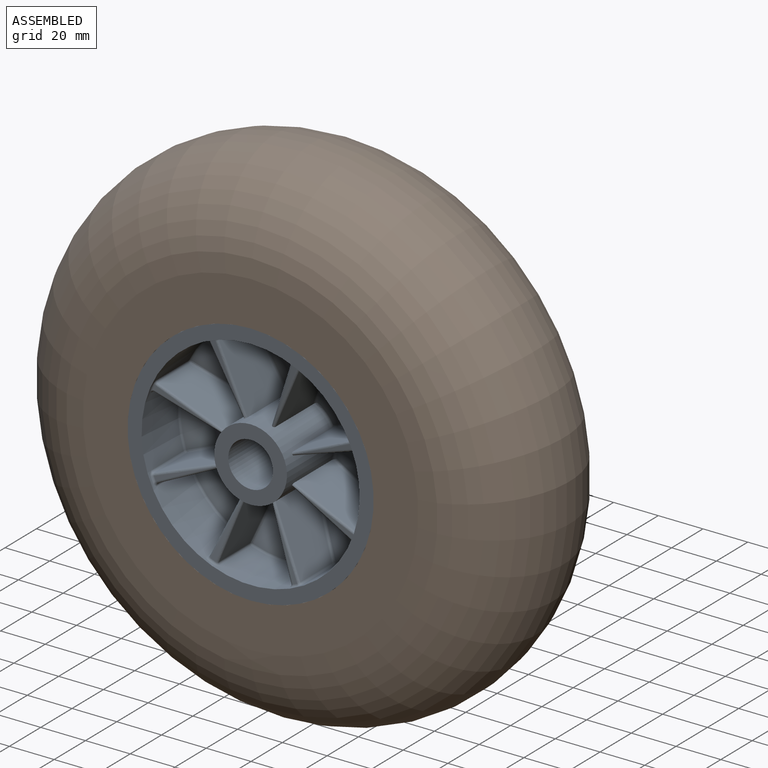
[diagram: assembled view]
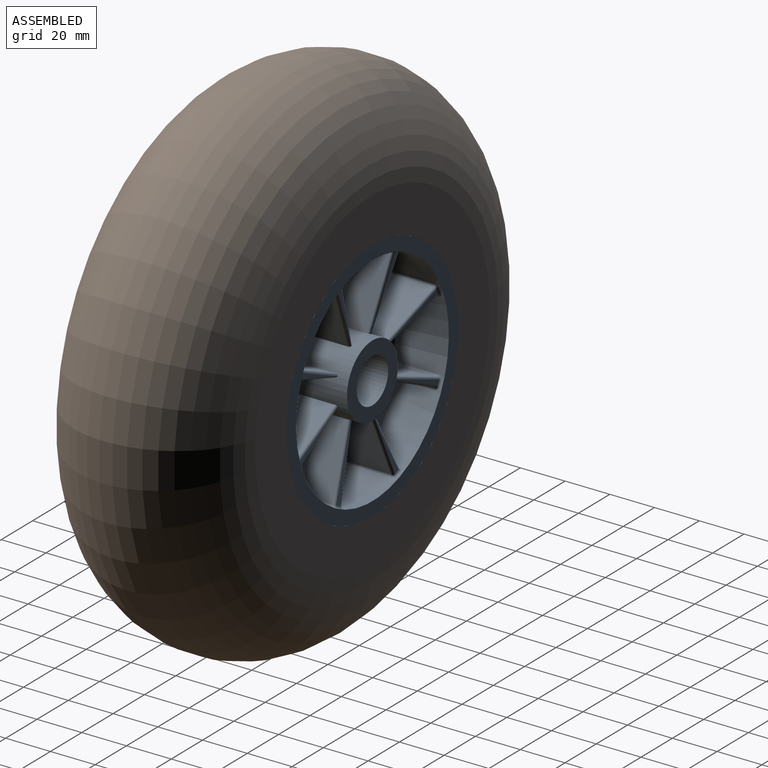
[diagram: assembled view, second angle]
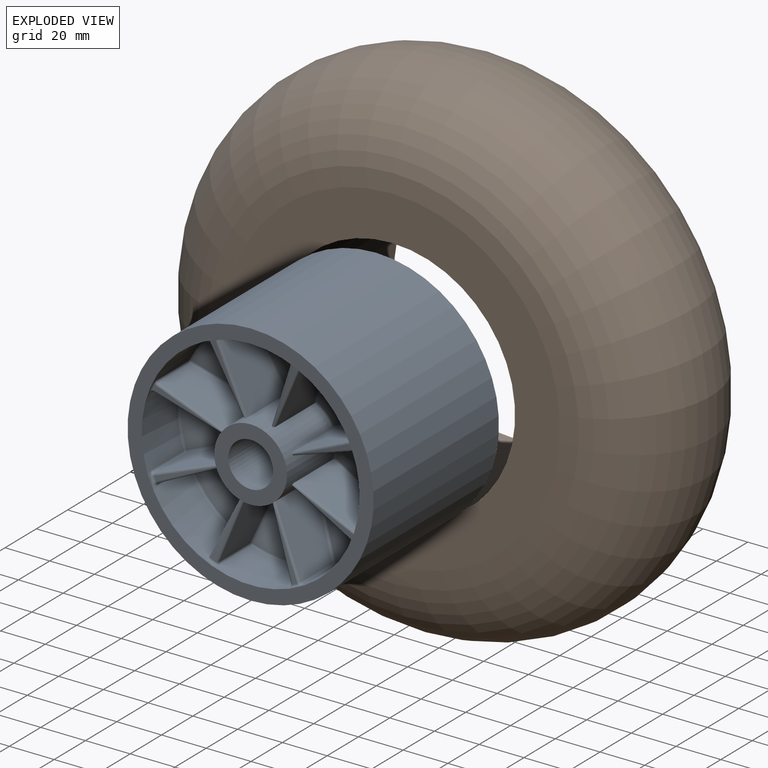
[diagram: exploded view]
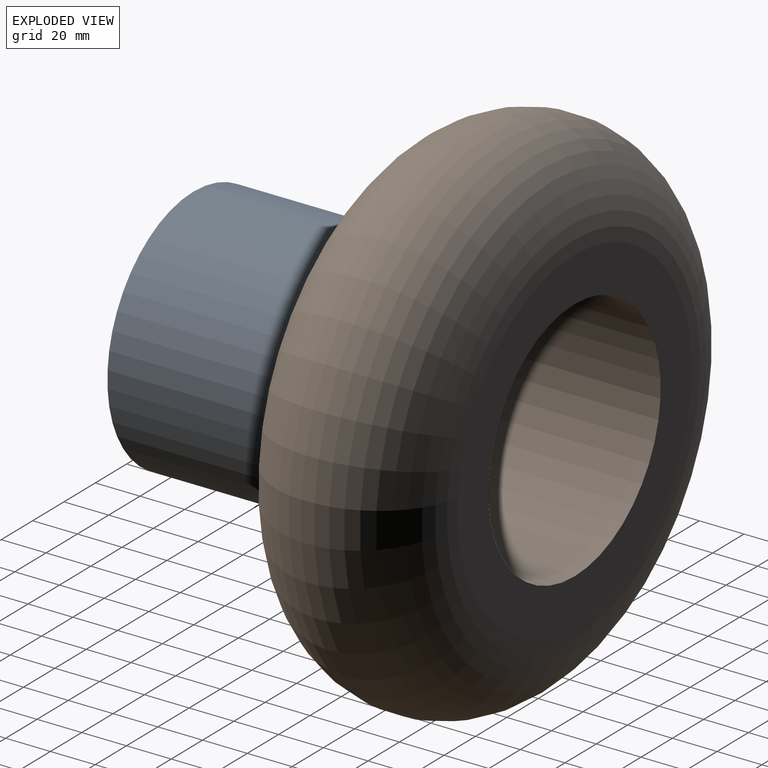
[diagram: exploded view, second angle]
ASSEMBLY  parts=2 mates=2
PART A: 282 faces, bbox 265.1x93x265.1 mm
  f0: plane 110x110mm, normal (0,-1,0), area 2037.4mm2, adj f2,f6
  f1: cylinder r=10mm len=80mm, axis (0,1,0), area 5026.5mm2, adj f3,f143
  f2: cylinder r=55mm len=110mm, axis (0,1,0), area 27646mm2, adj f0,f142
  f3: plane 32.5x32.5mm, normal (0,-1,0), area 515.5mm2, adj f1,f4
  f4: cylinder r=16.25mm len=32.5mm, axis (0,1,0), area 2783.5mm2, adj f3,f7,f9,f14,f17,f22,f26,f28
  f5: cone r=16.25mm half-angle=77.2deg, axis (0,-1,0), area 639.7mm2, adj f9,f10,f11,f19
  f6: cylinder r=48.75mm len=97.5mm, axis (0,1,0), area 5980.5mm2, adj f0,f10,f13,f15,f16,f21,f23,f24
  f7: plane 29.59x27.1mm, normal (0.94,0,0.34), area 694.7mm2, adj f4,f9,f11,f13,f14
  f8: cone r=16.25mm half-angle=84.7deg, axis (0,-1,0), area 22.6mm2, adj f14,f16,f40
  f9: torus R=17.25mm, axis (0,1,0), area 19.8mm2, adj f4,f5,f7,f11,f17,f19
  f10: torus R=47.75mm, axis (0,1,0), area 42.8mm2, adj f5,f6,f12,f20
  f11: bspline ~36.91x14.19mm, area 50.2mm2, adj f5,f7,f9,f12
  f12: sphere r=1mm, area 1.1mm2, adj f10,f11,f13
  f13: cylinder r=1mm len=19.93mm, axis (0,1,0), area 31.7mm2, adj f6,f7,f12,f15
  f14: bspline ~71.8x26.92mm, area 48.7mm2, adj f4,f7,f8,f15,f40
  f15: bspline ~2.34x2.33mm, area 3.3mm2, adj f6,f13,f14,f16
  f16: torus R=47.75mm, axis (0,1,0), area 3.3mm2, adj f6,f8,f15,f41
  f17: plane 29.59x27.1mm, normal (-0.94,0,0.34), area 694.7mm2, adj f4,f9,f19,f21,f22
  f18: cone r=16.25mm half-angle=84.7deg, axis (0,-1,0), area 22.6mm2, adj f22,f24,f134
  f19: bspline ~36.91x14.19mm, area 50.2mm2, adj f5,f9,f17,f20
  f20: sphere r=1mm, area 1.1mm2, adj f10,f19,f21
  f21: cylinder r=1mm len=19.93mm, axis (0,1,0), area 31.7mm2, adj f6,f17,f20,f23
  f22: bspline ~122.76x45.47mm, area 48.7mm2, adj f4,f17,f18,f23,f134
  f23: bspline ~2.34x2.33mm, area 3.3mm2, adj f6,f21,f22,f24
  f24: torus R=47.75mm, axis (0,1,0), area 3.3mm2, adj f6,f18,f23,f135
  f25: cone r=16.25mm half-angle=77.2deg, axis (0,-1,0), area 639.7mm2, adj f28,f29,f30,f37
  f26: plane 28.54x27.1mm, normal (0.42,0,0.91), area 694.7mm2, adj f4,f28,f30,f32,f33
  f27: cone r=16.25mm half-angle=84.7deg, axis (0,-1,0), area 22.6mm2, adj f33,f35,f57
  f28: torus R=17.25mm, axis (0,1,0), area 19.8mm2, adj f4,f25,f26,f30,f36,f37
  f29: torus R=47.75mm, axis (0,1,0), area 42.8mm2, adj f6,f25,f31,f38
  f30: bspline ~35.49x17.35mm, area 50.2mm2, adj f25,f26,f28,f31
  f31: sphere r=1mm, area 1.1mm2, adj f29,f30,f32
  f32: cylinder r=1mm len=19.93mm, axis (0,1,0), area 31.7mm2, adj f6,f26,f31,f34
  f33: bspline ~69.26x33.04mm, area 48.7mm2, adj f4,f26,f27,f34,f57
  f34: bspline ~2.42x2.34mm, area 3.3mm2, adj f6,f32,f33,f35
  f35: torus R=47.75mm, axis (0,1,0), area 3.3mm2, adj f6,f27,f34,f58
  f36: plane 28.54x27.1mm, normal (-0.91,0,-0.42), area 694.7mm2, adj f4,f28,f37,f39,f40
  f37: bspline ~35.49x17.35mm, area 50.2mm2, adj f25,f28,f36,f38
  f38: sphere r=1mm, area 1.1mm2, adj f29,f37,f39
  f39: cylinder r=1mm len=19.93mm, axis (0,1,0), area 31.7mm2, adj f6,f36,f38,f41
  f40: bspline ~118.41x55.96mm, area 48.7mm2, adj f4,f8,f14,f36,f41
  f41: bspline ~2.42x2.34mm, area 3.3mm2, adj f6,f16,f39,f40
  f42: cone r=16.25mm half-angle=77.2deg, axis (0,-1,0), area 639.7mm2, adj f45,f46,f47,f54
  f43: plane 29.59x27.1mm, normal (-0.34,0,0.94), area 694.7mm2, adj f4,f45,f47,f49,f50
  f44: cone r=16.25mm half-angle=84.7deg, axis (0,-1,0), area 22.6mm2, adj f50,f52,f74
  f45: torus R=17.25mm, axis (0,1,0), area 19.8mm2, adj f4,f42,f43,f47,f53,f54
  f46: torus R=47.75mm, axis (0,1,0), area 42.8mm2, adj f6,f42,f48,f55
  f47: bspline ~36.91x14.19mm, area 50.2mm2, adj f42,f43,f45,f48
  f48: sphere r=1mm, area 1.1mm2, adj f46,f47,f49
  f49: cylinder r=1mm len=19.93mm, axis (0,1,0), area 31.7mm2, adj f6,f43,f48,f51
  f50: bspline ~71.8x26.92mm, area 48.7mm2, adj f4,f43,f44,f51,f74
  f51: bspline ~2.34x2.33mm, area 3.3mm2, adj f6,f49,f50,f52
  f52: torus R=47.75mm, axis (0,1,0), area 3.3mm2, adj f6,f44,f51,f75
  f53: plane 29.59x27.1mm, normal (-0.34,0,-0.94), area 694.7mm2, adj f4,f45,f54,f56,f57
  f54: bspline ~36.91x14.19mm, area 50.2mm2, adj f42,f45,f53,f55
  f55: sphere r=1mm, area 1.1mm2, adj f46,f54,f56
  f56: cylinder r=1mm len=19.93mm, axis (0,1,0), area 31.7mm2, adj f6,f53,f55,f58
  f57: bspline ~122.76x45.47mm, area 48.7mm2, adj f4,f27,f33,f53,f58
  f58: bspline ~2.34x2.33mm, area 3.3mm2, adj f6,f35,f56,f57
  f59: cone r=16.25mm half-angle=77.2deg, axis (0,-1,0), area 639.7mm2, adj f62,f63,f64,f71
  f60: plane 28.54x27.1mm, normal (-0.91,0,0.42), area 694.7mm2, adj f4,f62,f64,f66,f67
  f61: cone r=16.25mm half-angle=84.7deg, axis (0,-1,0), area 22.6mm2, adj f67,f69,f91
  f62: torus R=17.25mm, axis (0,1,0), area 19.8mm2, adj f4,f59,f60,f64,f70,f71
  f63: torus R=47.75mm, axis (0,1,0), area 42.8mm2, adj f6,f59,f65,f72
  f64: bspline ~35.49x17.35mm, area 50.2mm2, adj f59,f60,f62,f65
  f65: sphere r=1mm, area 1.1mm2, adj f63,f64,f66
  f66: cylinder r=1mm len=19.93mm, axis (0,1,0), area 31.7mm2, adj f6,f60,f65,f68
  f67: bspline ~69.26x33.04mm, area 48.7mm2, adj f4,f60,f61,f68,f91
  f68: bspline ~2.42x2.34mm, area 3.3mm2, adj f6,f66,f67,f69
  f69: torus R=47.75mm, axis (0,1,0), area 3.3mm2, adj f6,f61,f68,f92
  f70: plane 28.54x27.1mm, normal (0.42,0,-0.91), area 694.7mm2, adj f4,f62,f71,f73,f74
  f71: bspline ~35.49x17.35mm, area 50.2mm2, adj f59,f62,f70,f72
  f72: sphere r=1mm, area 1.1mm2, adj f63,f71,f73
  f73: cylinder r=1mm len=19.93mm, axis (0,1,0), area 31.7mm2, adj f6,f70,f72,f75
  f74: bspline ~118.41x55.96mm, area 48.7mm2, adj f4,f44,f50,f70,f75
  f75: bspline ~2.42x2.34mm, area 3.3mm2, adj f6,f52,f73,f74
  f76: cone r=16.25mm half-angle=77.2deg, axis (0,-1,0), area 639.7mm2, adj f79,f80,f81,f88
  f77: plane 29.59x27.1mm, normal (-0.94,0,-0.34), area 694.7mm2, adj f4,f79,f81,f83,f84
  f78: cone r=16.25mm half-angle=84.7deg, axis (0,-1,0), area 22.6mm2, adj f84,f86,f108
  f79: torus R=17.25mm, axis (0,1,0), area 19.8mm2, adj f4,f76,f77,f81,f87,f88
  f80: torus R=47.75mm, axis (0,1,0), area 42.8mm2, adj f6,f76,f82,f89
  f81: bspline ~36.91x14.19mm, area 50.2mm2, adj f76,f77,f79,f82
  f82: sphere r=1mm, area 1.1mm2, adj f80,f81,f83
  f83: cylinder r=1mm len=19.93mm, axis (0,1,0), area 31.7mm2, adj f6,f77,f82,f85
  f84: bspline ~71.8x26.92mm, area 48.7mm2, adj f4,f77,f78,f85,f108
  f85: bspline ~2.34x2.33mm, area 3.3mm2, adj f6,f83,f84,f86
  f86: torus R=47.75mm, axis (0,1,0), area 3.3mm2, adj f6,f78,f85,f109
  f87: plane 29.59x27.1mm, normal (0.94,0,-0.34), area 694.7mm2, adj f4,f79,f88,f90,f91
  f88: bspline ~36.91x14.19mm, area 50.2mm2, adj f76,f79,f87,f89
  f89: sphere r=1mm, area 1.1mm2, adj f80,f88,f90
  f90: cylinder r=1mm len=19.93mm, axis (0,1,0), area 31.7mm2, adj f6,f87,f89,f92
  f91: bspline ~122.76x45.47mm, area 48.7mm2, adj f4,f61,f67,f87,f92
  f92: bspline ~2.34x2.33mm, area 3.3mm2, adj f6,f69,f90,f91
  f93: cone r=16.25mm half-angle=77.2deg, axis (0,-1,0), area 639.7mm2, adj f96,f97,f98,f105
  f94: plane 28.54x27.1mm, normal (-0.42,0,-0.91), area 694.7mm2, adj f4,f96,f98,f100,f101
  f95: cone r=16.25mm half-angle=84.7deg, axis (0,-1,0), area 22.6mm2, adj f101,f103,f125
  f96: torus R=17.25mm, axis (0,1,0), area 19.8mm2, adj f4,f93,f94,f98,f104,f105
  f97: torus R=47.75mm, axis (0,1,0), area 42.8mm2, adj f6,f93,f99,f106
  f98: bspline ~35.49x17.35mm, area 50.2mm2, adj f93,f94,f96,f99
  f99: sphere r=1mm, area 1.1mm2, adj f97,f98,f100
  f100: cylinder r=1mm len=19.93mm, axis (0,1,0), area 31.7mm2, adj f6,f94,f99,f102
  f101: bspline ~69.26x33.04mm, area 48.7mm2, adj f4,f94,f95,f102,f125
  f102: bspline ~2.42x2.34mm, area 3.3mm2, adj f6,f100,f101,f103
  f103: torus R=47.75mm, axis (0,1,0), area 3.3mm2, adj f6,f95,f102,f126
  f104: plane 28.54x27.1mm, normal (0.91,0,0.42), area 694.7mm2, adj f4,f96,f105,f107,f108
  f105: bspline ~35.49x17.35mm, area 50.2mm2, adj f93,f96,f104,f106
  f106: sphere r=1mm, area 1.1mm2, adj f97,f105,f107
  f107: cylinder r=1mm len=19.93mm, axis (0,1,0), area 31.7mm2, adj f6,f104,f106,f109
  f108: bspline ~118.41x55.96mm, area 48.7mm2, adj f4,f78,f84,f104,f109
  f109: bspline ~2.42x2.34mm, area 3.3mm2, adj f6,f86,f107,f108
  f110: cone r=16.25mm half-angle=77.2deg, axis (0,-1,0), area 639.7mm2, adj f113,f114,f115,f122
  f111: plane 29.59x27.1mm, normal (0.34,0,-0.94), area 694.7mm2, adj f4,f113,f115,f117,f118
  f112: cone r=16.25mm half-angle=84.7deg, axis (0,-1,0), area 22.6mm2, adj f118,f120,f140
  f113: torus R=17.25mm, axis (0,1,0), area 19.8mm2, adj f4,f110,f111,f115,f121,f122
  f114: torus R=47.75mm, axis (0,1,0), area 42.8mm2, adj f6,f110,f116,f123
  f115: bspline ~36.91x14.19mm, area 50.2mm2, adj f110,f111,f113,f116
  f116: sphere r=1mm, area 1.1mm2, adj f114,f115,f117
  f117: cylinder r=1mm len=19.93mm, axis (0,1,0), area 31.7mm2, adj f6,f111,f116,f119
  f118: bspline ~71.8x26.92mm, area 48.7mm2, adj f4,f111,f112,f119,f140
  f119: bspline ~2.34x2.33mm, area 3.3mm2, adj f6,f117,f118,f120
  f120: torus R=47.75mm, axis (0,1,0), area 3.3mm2, adj f6,f112,f119,f141
  f121: plane 29.59x27.1mm, normal (0.34,0,0.94), area 694.7mm2, adj f4,f113,f122,f124,f125
  f122: bspline ~36.91x14.19mm, area 50.2mm2, adj f110,f113,f121,f123
  f123: sphere r=1mm, area 1.1mm2, adj f114,f122,f124
  f124: cylinder r=1mm len=19.93mm, axis (0,1,0), area 31.7mm2, adj f6,f121,f123,f126
  f125: bspline ~122.76x45.47mm, area 48.7mm2, adj f4,f95,f101,f121,f126
  f126: bspline ~2.34x2.33mm, area 3.3mm2, adj f6,f103,f124,f125
  f127: cone r=16.25mm half-angle=77.2deg, axis (0,-1,0), area 639.7mm2, adj f129,f130,f131,f137
  f128: plane 28.54x27.1mm, normal (0.91,0,-0.42), area 694.7mm2, adj f4,f129,f131,f133,f134
  f129: torus R=17.25mm, axis (0,1,0), area 19.8mm2, adj f4,f127,f128,f131,f136,f137
  f130: torus R=47.75mm, axis (0,1,0), area 42.8mm2, adj f6,f127,f132,f138
  f131: bspline ~35.49x17.35mm, area 50.2mm2, adj f127,f128,f129,f132
  f132: sphere r=1mm, area 1.1mm2, adj f130,f131,f133
  f133: cylinder r=1mm len=19.93mm, axis (0,1,0), area 31.7mm2, adj f6,f128,f132,f135
  f134: bspline ~69.26x33.04mm, area 48.7mm2, adj f4,f18,f22,f128,f135
  f135: bspline ~2.42x2.34mm, area 3.3mm2, adj f6,f24,f133,f134
  f136: plane 28.54x27.1mm, normal (-0.42,0,0.91), area 694.7mm2, adj f4,f129,f137,f139,f140
  f137: bspline ~35.49x17.35mm, area 50.2mm2, adj f127,f129,f136,f138
  f138: sphere r=1mm, area 1.1mm2, adj f130,f137,f139
  f139: cylinder r=1mm len=19.93mm, axis (0,1,0), area 31.7mm2, adj f6,f136,f138,f141
  f140: bspline ~118.41x55.96mm, area 48.7mm2, adj f4,f112,f118,f136,f141
  f141: bspline ~2.42x2.34mm, area 3.3mm2, adj f6,f120,f139,f140
  f142: plane 110x110mm, normal (0,1,0), area 2037.4mm2, adj f2,f146
  f143: plane 32.5x32.5mm, normal (0,1,0), area 515.5mm2, adj f1,f144
  f144: cylinder r=16.25mm len=32.5mm, axis (0,-1,0), area 2783.5mm2, adj f143,f147,f149,f154,f157,f162,f166,f168
  f145: cone r=16.25mm half-angle=77.2deg, axis (0,1,0), area 639.7mm2, adj f149,f150,f151,f159
  f146: cylinder r=48.75mm len=97.5mm, axis (0,-1,0), area 5980.5mm2, adj f142,f150,f153,f155,f156,f161,f163,f164
  f147: plane 29.59x27.1mm, normal (0.94,0,0.34), area 694.7mm2, adj f144,f149,f151,f153,f154
  f148: cone r=16.25mm half-angle=84.7deg, axis (0,1,0), area 22.6mm2, adj f154,f156,f180
  f149: torus R=17.25mm, axis (0,-1,0), area 19.8mm2, adj f144,f145,f147,f151,f157,f159
  f150: torus R=47.75mm, axis (0,-1,0), area 42.8mm2, adj f145,f146,f152,f160
  f151: bspline ~36.91x14.19mm, area 50.2mm2, adj f145,f147,f149,f152
  f152: sphere r=1mm, area 1.1mm2, adj f150,f151,f153
  f153: cylinder r=1mm len=19.93mm, axis (0,-1,0), area 31.7mm2, adj f146,f147,f152,f155
  f154: bspline ~122.76x45.47mm, area 48.7mm2, adj f144,f147,f148,f155,f180
  f155: bspline ~2.34x2.33mm, area 3.3mm2, adj f146,f153,f154,f156
  f156: torus R=47.75mm, axis (0,-1,0), area 3.3mm2, adj f146,f148,f155,f181
  f157: plane 29.59x27.1mm, normal (-0.94,0,0.34), area 694.7mm2, adj f144,f149,f159,f161,f162
  f158: cone r=16.25mm half-angle=84.7deg, axis (0,1,0), area 22.6mm2, adj f162,f164,f274
  f159: bspline ~36.91x14.19mm, area 50.2mm2, adj f145,f149,f157,f160
  f160: sphere r=1mm, area 1.1mm2, adj f150,f159,f161
  f161: cylinder r=1mm len=19.93mm, axis (0,-1,0), area 31.7mm2, adj f146,f157,f160,f163
  f162: bspline ~71.8x26.92mm, area 48.7mm2, adj f144,f157,f158,f163,f274
  f163: bspline ~2.34x2.33mm, area 3.3mm2, adj f146,f161,f162,f164
  f164: torus R=47.75mm, axis (0,-1,0), area 3.3mm2, adj f146,f158,f163,f275
  f165: cone r=16.25mm half-angle=77.2deg, axis (0,1,0), area 639.7mm2, adj f168,f169,f170,f177
  f166: plane 28.54x27.1mm, normal (0.42,0,0.91), area 694.7mm2, adj f144,f168,f170,f172,f173
  f167: cone r=16.25mm half-angle=84.7deg, axis (0,1,0), area 22.6mm2, adj f173,f175,f197
  f168: torus R=17.25mm, axis (0,-1,0), area 19.8mm2, adj f144,f165,f166,f170,f176,f177
  f169: torus R=47.75mm, axis (0,-1,0), area 42.8mm2, adj f146,f165,f171,f178
  f170: bspline ~35.49x17.35mm, area 50.2mm2, adj f165,f166,f168,f171
  f171: sphere r=1mm, area 1.1mm2, adj f169,f170,f172
  f172: cylinder r=1mm len=19.93mm, axis (0,-1,0), area 31.7mm2, adj f146,f166,f171,f174
  f173: bspline ~118.41x55.96mm, area 48.7mm2, adj f144,f166,f167,f174,f197
  f174: bspline ~2.42x2.34mm, area 3.3mm2, adj f146,f172,f173,f175
  f175: torus R=47.75mm, axis (0,-1,0), area 3.3mm2, adj f146,f167,f174,f198
  f176: plane 28.54x27.1mm, normal (-0.91,0,-0.42), area 694.7mm2, adj f144,f168,f177,f179,f180
  f177: bspline ~35.49x17.35mm, area 50.2mm2, adj f165,f168,f176,f178
  f178: sphere r=1mm, area 1.1mm2, adj f169,f177,f179
  f179: cylinder r=1mm len=19.93mm, axis (0,-1,0), area 31.7mm2, adj f146,f176,f178,f181
  f180: bspline ~69.26x33.04mm, area 48.7mm2, adj f144,f148,f154,f176,f181
  f181: bspline ~2.42x2.34mm, area 3.3mm2, adj f146,f156,f179,f180
  f182: cone r=16.25mm half-angle=77.2deg, axis (0,1,0), area 639.7mm2, adj f185,f186,f187,f194
  f183: plane 29.59x27.1mm, normal (-0.34,0,0.94), area 694.7mm2, adj f144,f185,f187,f189,f190
  f184: cone r=16.25mm half-angle=84.7deg, axis (0,1,0), area 22.6mm2, adj f190,f192,f214
  f185: torus R=17.25mm, axis (0,-1,0), area 19.8mm2, adj f144,f182,f183,f187,f193,f194
  f186: torus R=47.75mm, axis (0,-1,0), area 42.8mm2, adj f146,f182,f188,f195
  f187: bspline ~36.91x14.19mm, area 50.2mm2, adj f182,f183,f185,f188
  f188: sphere r=1mm, area 1.1mm2, adj f186,f187,f189
  f189: cylinder r=1mm len=19.93mm, axis (0,-1,0), area 31.7mm2, adj f146,f183,f188,f191
  f190: bspline ~122.76x45.47mm, area 48.7mm2, adj f144,f183,f184,f191,f214
  f191: bspline ~2.34x2.33mm, area 3.3mm2, adj f146,f189,f190,f192
  f192: torus R=47.75mm, axis (0,-1,0), area 3.3mm2, adj f146,f184,f191,f215
  f193: plane 29.59x27.1mm, normal (-0.34,0,-0.94), area 694.7mm2, adj f144,f185,f194,f196,f197
  f194: bspline ~36.91x14.19mm, area 50.2mm2, adj f182,f185,f193,f195
  f195: sphere r=1mm, area 1.1mm2, adj f186,f194,f196
  f196: cylinder r=1mm len=19.93mm, axis (0,-1,0), area 31.7mm2, adj f146,f193,f195,f198
  f197: bspline ~71.8x26.92mm, area 48.7mm2, adj f144,f167,f173,f193,f198
  f198: bspline ~2.34x2.33mm, area 3.3mm2, adj f146,f175,f196,f197
  f199: cone r=16.25mm half-angle=77.2deg, axis (0,1,0), area 639.7mm2, adj f202,f203,f204,f211
  f200: plane 28.54x27.1mm, normal (-0.91,0,0.42), area 694.7mm2, adj f144,f202,f204,f206,f207
  f201: cone r=16.25mm half-angle=84.7deg, axis (0,1,0), area 22.6mm2, adj f207,f209,f231
  f202: torus R=17.25mm, axis (0,-1,0), area 19.8mm2, adj f144,f199,f200,f204,f210,f211
  f203: torus R=47.75mm, axis (0,-1,0), area 42.8mm2, adj f146,f199,f205,f212
  f204: bspline ~35.49x17.35mm, area 50.2mm2, adj f199,f200,f202,f205
  f205: sphere r=1mm, area 1.1mm2, adj f203,f204,f206
  f206: cylinder r=1mm len=19.93mm, axis (0,-1,0), area 31.7mm2, adj f146,f200,f205,f208
  f207: bspline ~118.41x55.96mm, area 48.7mm2, adj f144,f200,f201,f208,f231
  f208: bspline ~2.42x2.34mm, area 3.3mm2, adj f146,f206,f207,f209
  f209: torus R=47.75mm, axis (0,-1,0), area 3.3mm2, adj f146,f201,f208,f232
  f210: plane 28.54x27.1mm, normal (0.42,0,-0.91), area 694.7mm2, adj f144,f202,f211,f213,f214
  f211: bspline ~35.49x17.35mm, area 50.2mm2, adj f199,f202,f210,f212
  f212: sphere r=1mm, area 1.1mm2, adj f203,f211,f213
  f213: cylinder r=1mm len=19.93mm, axis (0,-1,0), area 31.7mm2, adj f146,f210,f212,f215
  f214: bspline ~69.26x33.04mm, area 48.7mm2, adj f144,f184,f190,f210,f215
  f215: bspline ~2.42x2.34mm, area 3.3mm2, adj f146,f192,f213,f214
  f216: cone r=16.25mm half-angle=77.2deg, axis (0,1,0), area 639.7mm2, adj f219,f220,f221,f228
  f217: plane 29.59x27.1mm, normal (-0.94,0,-0.34), area 694.7mm2, adj f144,f219,f221,f223,f224
  f218: cone r=16.25mm half-angle=84.7deg, axis (0,1,0), area 22.6mm2, adj f224,f226,f248
  f219: torus R=17.25mm, axis (0,-1,0), area 19.8mm2, adj f144,f216,f217,f221,f227,f228
  f220: torus R=47.75mm, axis (0,-1,0), area 42.8mm2, adj f146,f216,f222,f229
  f221: bspline ~36.91x14.19mm, area 50.2mm2, adj f216,f217,f219,f222
  f222: sphere r=1mm, area 1.1mm2, adj f220,f221,f223
  f223: cylinder r=1mm len=19.93mm, axis (0,-1,0), area 31.7mm2, adj f146,f217,f222,f225
  f224: bspline ~122.76x45.47mm, area 48.7mm2, adj f144,f217,f218,f225,f248
  f225: bspline ~2.34x2.33mm, area 3.3mm2, adj f146,f223,f224,f226
  f226: torus R=47.75mm, axis (0,-1,0), area 3.3mm2, adj f146,f218,f225,f249
  f227: plane 29.59x27.1mm, normal (0.94,0,-0.34), area 694.7mm2, adj f144,f219,f228,f230,f231
  f228: bspline ~36.91x14.19mm, area 50.2mm2, adj f216,f219,f227,f229
  f229: sphere r=1mm, area 1.1mm2, adj f220,f228,f230
  f230: cylinder r=1mm len=19.93mm, axis (0,-1,0), area 31.7mm2, adj f146,f227,f229,f232
  f231: bspline ~71.8x26.92mm, area 48.7mm2, adj f144,f201,f207,f227,f232
  f232: bspline ~2.34x2.33mm, area 3.3mm2, adj f146,f209,f230,f231
  f233: cone r=16.25mm half-angle=77.2deg, axis (0,1,0), area 639.7mm2, adj f236,f237,f238,f245
  f234: plane 28.54x27.1mm, normal (-0.42,0,-0.91), area 694.7mm2, adj f144,f236,f238,f240,f241
  f235: cone r=16.25mm half-angle=84.7deg, axis (0,1,0), area 22.6mm2, adj f241,f243,f265
  f236: torus R=17.25mm, axis (0,-1,0), area 19.8mm2, adj f144,f233,f234,f238,f244,f245
  f237: torus R=47.75mm, axis (0,-1,0), area 42.8mm2, adj f146,f233,f239,f246
  f238: bspline ~35.49x17.35mm, area 50.2mm2, adj f233,f234,f236,f239
  f239: sphere r=1mm, area 1.1mm2, adj f237,f238,f240
  f240: cylinder r=1mm len=19.93mm, axis (0,-1,0), area 31.7mm2, adj f146,f234,f239,f242
  f241: bspline ~118.41x55.96mm, area 48.7mm2, adj f144,f234,f235,f242,f265
  f242: bspline ~2.42x2.34mm, area 3.3mm2, adj f146,f240,f241,f243
  f243: torus R=47.75mm, axis (0,-1,0), area 3.3mm2, adj f146,f235,f242,f266
  f244: plane 28.54x27.1mm, normal (0.91,0,0.42), area 694.7mm2, adj f144,f236,f245,f247,f248
  f245: bspline ~35.49x17.35mm, area 50.2mm2, adj f233,f236,f244,f246
  f246: sphere r=1mm, area 1.1mm2, adj f237,f245,f247
  f247: cylinder r=1mm len=19.93mm, axis (0,-1,0), area 31.7mm2, adj f146,f244,f246,f249
  f248: bspline ~69.26x33.04mm, area 48.7mm2, adj f144,f218,f224,f244,f249
  f249: bspline ~2.42x2.34mm, area 3.3mm2, adj f146,f226,f247,f248
  f250: cone r=16.25mm half-angle=77.2deg, axis (0,1,0), area 639.7mm2, adj f253,f254,f255,f262
  f251: plane 29.59x27.1mm, normal (0.34,0,-0.94), area 694.7mm2, adj f144,f253,f255,f257,f258
  f252: cone r=16.25mm half-angle=84.7deg, axis (0,1,0), area 22.6mm2, adj f258,f260,f280
  f253: torus R=17.25mm, axis (0,-1,0), area 19.8mm2, adj f144,f250,f251,f255,f261,f262
  f254: torus R=47.75mm, axis (0,-1,0), area 42.8mm2, adj f146,f250,f256,f263
  f255: bspline ~36.91x14.19mm, area 50.2mm2, adj f250,f251,f253,f256
  f256: sphere r=1mm, area 1.1mm2, adj f254,f255,f257
  f257: cylinder r=1mm len=19.93mm, axis (0,-1,0), area 31.7mm2, adj f146,f251,f256,f259
  f258: bspline ~122.76x45.47mm, area 48.7mm2, adj f144,f251,f252,f259,f280
  f259: bspline ~2.34x2.33mm, area 3.3mm2, adj f146,f257,f258,f260
  f260: torus R=47.75mm, axis (0,-1,0), area 3.3mm2, adj f146,f252,f259,f281
  f261: plane 29.59x27.1mm, normal (0.34,0,0.94), area 694.7mm2, adj f144,f253,f262,f264,f265
  f262: bspline ~36.91x14.19mm, area 50.2mm2, adj f250,f253,f261,f263
  f263: sphere r=1mm, area 1.1mm2, adj f254,f262,f264
  f264: cylinder r=1mm len=19.93mm, axis (0,-1,0), area 31.7mm2, adj f146,f261,f263,f266
  f265: bspline ~71.8x26.92mm, area 48.7mm2, adj f144,f235,f241,f261,f266
  f266: bspline ~2.34x2.33mm, area 3.3mm2, adj f146,f243,f264,f265
  f267: cone r=16.25mm half-angle=77.2deg, axis (0,1,0), area 639.7mm2, adj f269,f270,f271,f277
  f268: plane 28.54x27.1mm, normal (0.91,0,-0.42), area 694.7mm2, adj f144,f269,f271,f273,f274
  f269: torus R=17.25mm, axis (0,-1,0), area 19.8mm2, adj f144,f267,f268,f271,f276,f277
  f270: torus R=47.75mm, axis (0,-1,0), area 42.8mm2, adj f146,f267,f272,f278
  f271: bspline ~35.49x17.35mm, area 50.2mm2, adj f267,f268,f269,f272
  f272: sphere r=1mm, area 1.1mm2, adj f270,f271,f273
  f273: cylinder r=1mm len=19.93mm, axis (0,-1,0), area 31.7mm2, adj f146,f268,f272,f275
  f274: bspline ~118.41x55.96mm, area 48.7mm2, adj f144,f158,f162,f268,f275
  f275: bspline ~2.42x2.34mm, area 3.3mm2, adj f146,f164,f273,f274
  f276: plane 28.54x27.1mm, normal (-0.42,0,0.91), area 694.7mm2, adj f144,f269,f277,f279,f280
  f277: bspline ~35.49x17.35mm, area 50.2mm2, adj f267,f269,f276,f278
  f278: sphere r=1mm, area 1.1mm2, adj f270,f277,f279
  f279: cylinder r=1mm len=19.93mm, axis (0,-1,0), area 31.7mm2, adj f146,f276,f278,f281
  f280: bspline ~69.26x33.04mm, area 48.7mm2, adj f144,f252,f258,f276,f281
  f281: bspline ~2.42x2.34mm, area 3.3mm2, adj f146,f260,f279,f280
PART B: 4 faces, bbox 249x80x249 mm
  f0: cylinder r=55mm len=110mm, axis (0,1,0), area 27646mm2, adj f1,f2
  f1: plane 150x150mm, normal (0,-1,0), area 8168.1mm2, adj f0,f3
  f2: plane 150x150mm, normal (0,1,0), area 8168.1mm2, adj f0,f3
  f3: torus R=75mm, axis (0,-1,0), area 79323.8mm2, adj f1,f2
PLACE A t=(-0.09,19.9,-0.08)mm fixed
PLACE B t=(-0.09,59.9,-0.08)mm
MATE planar B.f0 <-> A.f27  axis (0,-1,0) through (-0.09,-20.1,-0.08)mm
MATE cylindrical A.f1 <-> B.f0  axis (0,1,0) through (-0.09,19.9,-0.08)mm
